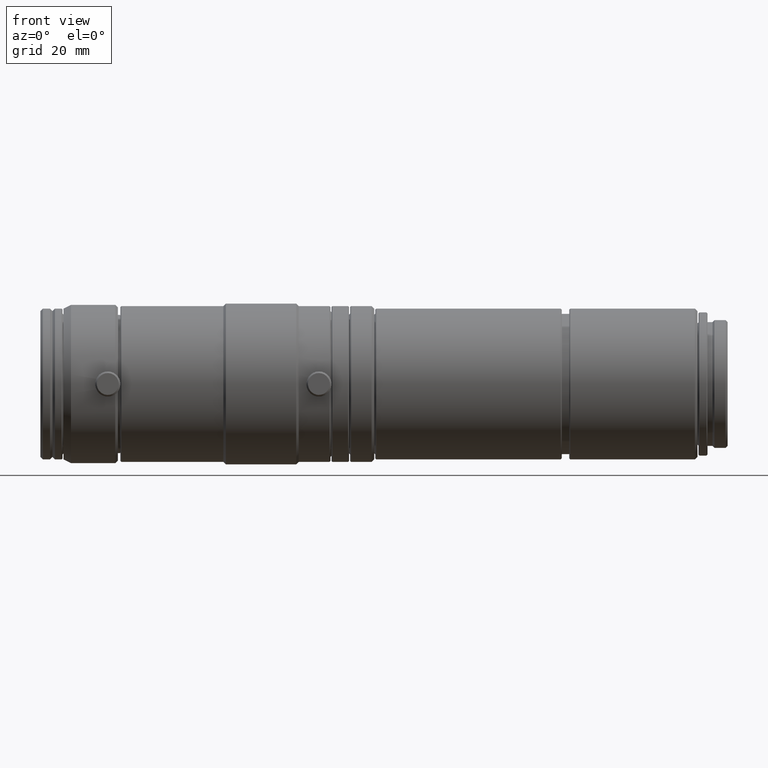
[diagram: clean part render]
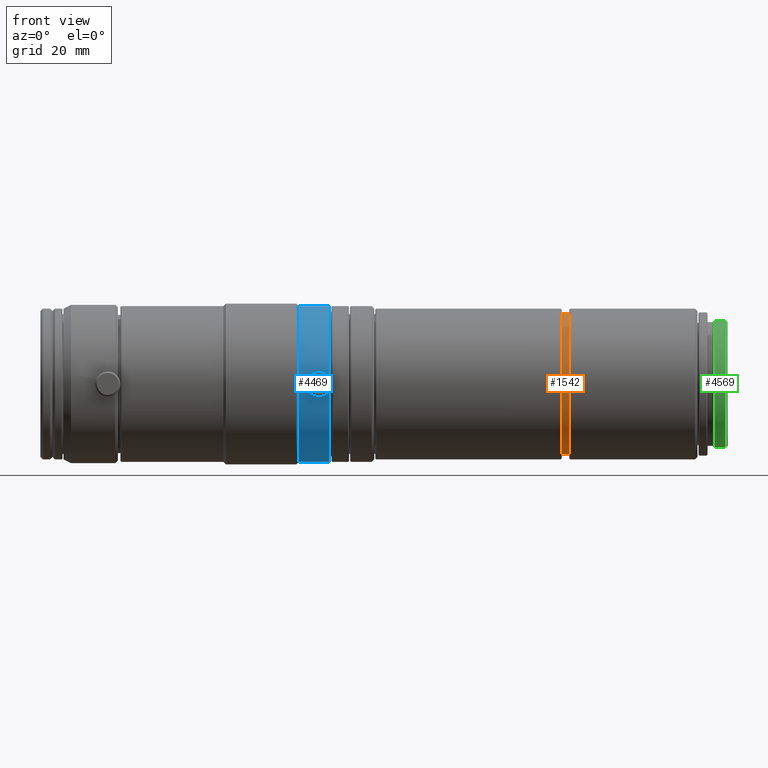
[diagram: same view with three faces highlighted in distinct colors, each labeled with its STEP entity id]
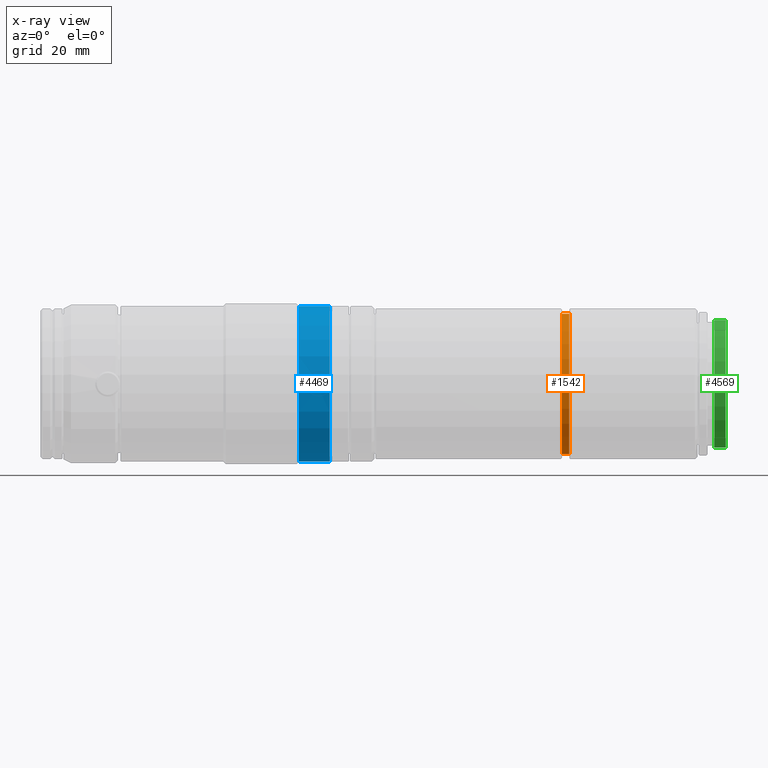
[diagram: x-ray of the same camera — body ghosted, the three highlighted faces saturated]
A machine part, front view with three faces highlighted in distinct colors.
The next image is the same camera in x-ray (body ghosted, the three faces saturated) — at least one of them is partly hidden behind the body in this view.
Their STEP definitions:

[orange] entity #1542 — the highlighted cylindrical surface (partial cylindrical patch) has radius 13.95 mm, axis along (-1, -0, -0).
#52 = CYLINDRICAL_SURFACE ( 'NONE', #1264, 13.94999999999984475 ) ;
#193 = CARTESIAN_POINT ( 'NONE',  ( -45.02599999999988256, -1.734723475976807094E-13, 13.94999999999984475 ) ) ;
#408 = EDGE_CURVE ( 'NONE', #541, #1336, #1534, .T. ) ;
#452 = AXIS2_PLACEMENT_3D ( 'NONE', #2033, #3782, #4503 ) ;
#541 = VERTEX_POINT ( 'NONE', #193 ) ;
#624 = CARTESIAN_POINT ( 'NONE',  ( -46.52599999999990388, -1.717639653128701907E-13, -13.94999999999984475 ) ) ;
#671 = EDGE_CURVE ( 'NONE', #3006, #3467, #4531, .T. ) ;
#710 = DIRECTION ( 'NONE',  ( -1.000000000000000000, -0.0000000000000000000, -0.0000000000000000000 ) ) ;
#762 = DIRECTION ( 'NONE',  ( -1.000000000000000000, -0.0000000000000000000, -0.0000000000000000000 ) ) ;
#813 = AXIS2_PLACEMENT_3D ( 'NONE', #4272, #1062, #1714 ) ;
#906 = EDGE_LOOP ( 'NONE', ( #2288, #2761, #2978, #2783 ) ) ;
#909 = VECTOR ( 'NONE', #762, 1000.000000000000000 ) ;
#1062 = DIRECTION ( 'NONE',  ( -1.000000000000000000, -0.0000000000000000000, -0.0000000000000000000 ) ) ;
#1264 = AXIS2_PLACEMENT_3D ( 'NONE', #4615, #710, #3248 ) ;
#1336 = VERTEX_POINT ( 'NONE', #2216 ) ;
#1411 = CIRCLE ( 'NONE', #813, 13.94999999999984475 ) ;
#1534 = LINE ( 'NONE', #1889, #909 ) ;
#1542 = ADVANCED_FACE ( 'NONE', ( #2484 ), #52, .T. ) ;
#1714 = DIRECTION ( 'NONE',  ( 0.0000000000000000000, 0.0000000000000000000, 1.000000000000000000 ) ) ;
#1889 = CARTESIAN_POINT ( 'NONE',  ( -80.99597258271282385, -1.734723475976807094E-13, 13.94999999999984475 ) ) ;
#2033 = CARTESIAN_POINT ( 'NONE',  ( -46.52599999999990388, -1.734723475976807094E-13, 0.0000000000000000000 ) ) ;
#2216 = CARTESIAN_POINT ( 'NONE',  ( -46.52599999999990388, -1.734723475976807094E-13, 13.94999999999984475 ) ) ;
#2246 = EDGE_CURVE ( 'NONE', #3006, #541, #1411, .T. ) ;
#2288 = ORIENTED_EDGE ( 'NONE', *, *, #671, .F. ) ;
#2463 = CIRCLE ( 'NONE', #452, 13.94999999999984475 ) ;
#2484 = FACE_OUTER_BOUND ( 'NONE', #906, .T. ) ;
#2761 = ORIENTED_EDGE ( 'NONE', *, *, #2246, .T. ) ;
#2783 = ORIENTED_EDGE ( 'NONE', *, *, #3510, .F. ) ;
#2978 = ORIENTED_EDGE ( 'NONE', *, *, #408, .T. ) ;
#3006 = VERTEX_POINT ( 'NONE', #4364 ) ;
#3248 = DIRECTION ( 'NONE',  ( 0.0000000000000000000, 0.0000000000000000000, 1.000000000000000000 ) ) ;
#3421 = DIRECTION ( 'NONE',  ( -1.000000000000000000, -0.0000000000000000000, -0.0000000000000000000 ) ) ;
#3467 = VERTEX_POINT ( 'NONE', #624 ) ;
#3510 = EDGE_CURVE ( 'NONE', #3467, #1336, #2463, .T. ) ;
#3782 = DIRECTION ( 'NONE',  ( -1.000000000000000000, -0.0000000000000000000, -0.0000000000000000000 ) ) ;
#3795 = CARTESIAN_POINT ( 'NONE',  ( -80.99597258271282385, -1.717639653128701907E-13, -13.94999999999984475 ) ) ;
#3975 = VECTOR ( 'NONE', #3421, 1000.000000000000000 ) ;
#4272 = CARTESIAN_POINT ( 'NONE',  ( -45.02599999999988256, -1.734723475976807094E-13, 0.0000000000000000000 ) ) ;
#4364 = CARTESIAN_POINT ( 'NONE',  ( -45.02599999999988256, -1.717639653128701907E-13, -13.94999999999984475 ) ) ;
#4503 = DIRECTION ( 'NONE',  ( 0.0000000000000000000, 0.0000000000000000000, 1.000000000000000000 ) ) ;
#4531 = LINE ( 'NONE', #3795, #3975 ) ;
#4615 = CARTESIAN_POINT ( 'NONE',  ( -80.99597258271282385, -1.734723475976807094E-13, 0.0000000000000000000 ) ) ;

[blue] entity #4469 — the highlighted cylindrical surface (partial cylindrical patch) has radius 15.4938 mm, axis along (-1, -0, -0).
#11 = EDGE_CURVE ( 'NONE', #2020, #3192, #3523, .T. ) ;
#21 = CARTESIAN_POINT ( 'NONE',  ( -95.25446737165636080, -15.47607258610413261, 0.7425186345703117530 ) ) ;
#87 = VERTEX_POINT ( 'NONE', #4568 ) ;
#128 = EDGE_CURVE ( 'NONE', #3103, #2020, #2779, .T. ) ;
#230 = CARTESIAN_POINT ( 'NONE',  ( -92.72599999999991383, -1.715749023950809874E-13, -15.49381588161426926 ) ) ;
#299 = ORIENTED_EDGE ( 'NONE', *, *, #3150, .F. ) ;
#300 = EDGE_CURVE ( 'NONE', #87, #826, #928, .T. ) ;
#324 = CARTESIAN_POINT ( 'NONE',  ( -94.82600000000030604, -15.47048255786998183, -0.8500000000050538240 ) ) ;
#391 = CARTESIAN_POINT ( 'NONE',  ( -94.82599999999989393, -15.47048255787025717, 0.8500000000000174083 ) ) ;
#443 = CARTESIAN_POINT ( 'NONE',  ( -95.25426659892906400, -15.47606660069958906, -0.7426425660551916330 ) ) ;
#501 = CARTESIAN_POINT ( 'NONE',  ( -92.72599999999991383, -1.734723475976807094E-13, 15.49381588161426926 ) ) ;
#574 = CIRCLE ( 'NONE', #2287, 15.49381588161426926 ) ;
#623 = DIRECTION ( 'NONE',  ( 0.0000000000000000000, 0.0000000000000000000, 1.000000000000000000 ) ) ;
#703 = CARTESIAN_POINT ( 'NONE',  ( -95.34783336027098244, -15.47907799314020316, -0.6802827682924112995 ) ) ;
#757 = CARTESIAN_POINT ( 'NONE',  ( -95.67596036666603254, -15.49381370730619523, 0.1112065953670492158 ) ) ;
#779 = CARTESIAN_POINT ( 'NONE',  ( -92.72599999999991383, -1.734723475976807094E-13, 0.0000000000000000000 ) ) ;
#826 = VERTEX_POINT ( 'NONE', #324 ) ;
#831 = DIRECTION ( 'NONE',  ( 0.0000000000000000000, 0.0000000000000000000, 1.000000000000000000 ) ) ;
#928 = B_SPLINE_CURVE_WITH_KNOTS ( 'NONE', 3,
 ( #391, #4337, #4309, #21, #1136, #1180, #2557, #2223, #757, #2199, #3648, #4362, #1159, #703, #443, #2607, #1467, #3218 ),
 .UNSPECIFIED., .F., .F.,
 ( 4, 2, 2, 2, 2, 2, 2, 2, 4 ),
 ( 0.0000000000000000000, 0.0003322483264953155326, 0.0006644966529906310652, 0.0009967449794859467062, 0.001328993305981262130, 0.001661241632476577555, 0.001993489958971893412, 0.002325738285467208837, 0.002657986611962524261 ),
 .UNSPECIFIED. ) ;
#969 = CARTESIAN_POINT ( 'NONE',  ( -94.08315502678317443, -15.48824834827563102, 0.4279260222972148808 ) ) ;
#990 = CARTESIAN_POINT ( 'NONE',  ( -94.60324589908309179, -15.47174813613593614, -0.8277301331874483692 ) ) ;
#1064 = VERTEX_POINT ( 'NONE', #1379 ) ;
#1069 = DIRECTION ( 'NONE',  ( -1.000000000000000000, -0.0000000000000000000, -0.0000000000000000000 ) ) ;
#1086 = ORIENTED_EDGE ( 'NONE', *, *, #11, .T. ) ;
#1136 = CARTESIAN_POINT ( 'NONE',  ( -95.34875396797387737, -15.47911384840322491, 0.6793561786664675806 ) ) ;
#1148 = EDGE_CURVE ( 'NONE', #1064, #3192, #574, .T. ) ;
#1158 = ORIENTED_EDGE ( 'NONE', *, *, #4171, .F. ) ;
#1159 = CARTESIAN_POINT ( 'NONE',  ( -95.50651042020669479, -15.48523941997138031, -0.5215364500371673095 ) ) ;
#1180 = CARTESIAN_POINT ( 'NONE',  ( -95.50554706322537868, -15.48520190478426706, 0.5225058060792246994 ) ) ;
#1209 = DIRECTION ( 'NONE',  ( -1.000000000000000000, -0.0000000000000000000, -0.0000000000000000000 ) ) ;
#1283 = CARTESIAN_POINT ( 'NONE',  ( -94.82599999999989393, -15.47048255787025717, 0.8500000000000174083 ) ) ;
#1324 = CARTESIAN_POINT ( 'NONE',  ( -94.30379561736198468, -15.47909520371758596, -0.6797670255203960288 ) ) ;
#1379 = CARTESIAN_POINT ( 'NONE',  ( -98.82599999999993656, -1.715749023950809874E-13, -15.49381588161426926 ) ) ;
#1467 = CARTESIAN_POINT ( 'NONE',  ( -94.93696142450068010, -15.47048255787026427, -0.8499999999999253708 ) ) ;
#1486 = ORIENTED_EDGE ( 'NONE', *, *, #1148, .F. ) ;
#1556 = CARTESIAN_POINT ( 'NONE',  ( -80.99597258271282385, -1.734723475976807094E-13, 0.0000000000000000000 ) ) ;
#1600 = EDGE_LOOP ( 'NONE', ( #1158, #1911, #1086, #1486 ) ) ;
#1612 = CARTESIAN_POINT ( 'NONE',  ( -80.99597258271282385, -1.715749023950809874E-13, -15.49381588161426926 ) ) ;
#1731 = CARTESIAN_POINT ( 'NONE',  ( -80.99597258271282385, -1.734723475976807094E-13, 15.49381588161426926 ) ) ;
#1746 = EDGE_LOOP ( 'NONE', ( #2652, #299 ) ) ;
#1771 = CARTESIAN_POINT ( 'NONE',  ( -98.82599999999993656, -1.734723475976807094E-13, 0.0000000000000000000 ) ) ;
#1911 = ORIENTED_EDGE ( 'NONE', *, *, #128, .T. ) ;
#1990 = AXIS2_PLACEMENT_3D ( 'NONE', #1556, #1209, #831 ) ;
#1999 = CARTESIAN_POINT ( 'NONE',  ( -93.99832356615496565, -15.49254855719626889, -0.2232493793685214889 ) ) ;
#2020 = VERTEX_POINT ( 'NONE', #501 ) ;
#2037 = CARTESIAN_POINT ( 'NONE',  ( -94.38129770815358199, -15.47608003582110925, 0.7576004162992882041 ) ) ;
#2055 = CARTESIAN_POINT ( 'NONE',  ( -94.14615379588785515, -15.48521511242138082, 0.5221242845740771132 ) ) ;
#2199 = CARTESIAN_POINT ( 'NONE',  ( -95.67603952507468534, -15.49381804998352585, -0.1105998985849310223 ) ) ;
#2204 = B_SPLINE_CURVE_WITH_KNOTS ( 'NONE', 3,
 ( #4542, #2771, #990, #3109, #1324, #2747, #4173, #1999, #3411, #4482, #2407, #969, #2055, #2037, #3474, #1283 ),
 .UNSPECIFIED., .F., .F.,
 ( 4, 2, 2, 2, 2, 2, 2, 4 ),
 ( 0.002657986611962524261, 0.002990159070146856252, 0.003322331528331188243, 0.003654503986515520234, 0.003986676444699852224, 0.004318848902884184215, 0.004651021361068517074, 0.005315366277437209679 ),
 .UNSPECIFIED. ) ;
#2223 = CARTESIAN_POINT ( 'NONE',  ( -95.65364179140868828, -15.49254754847084214, 0.2230902797096209478 ) ) ;
#2287 = AXIS2_PLACEMENT_3D ( 'NONE', #1771, #1069, #623 ) ;
#2324 = VECTOR ( 'NONE', #4199, 1000.000000000000000 ) ;
#2407 = CARTESIAN_POINT ( 'NONE',  ( -93.99790242326537282, -15.49257124689839848, 0.2217966144892720981 ) ) ;
#2557 = CARTESIAN_POINT ( 'NONE',  ( -95.56886954455065109, -15.48825018415458565, 0.4276739968319707708 ) ) ;
#2583 = FACE_OUTER_BOUND ( 'NONE', #1600, .T. ) ;
#2607 = CARTESIAN_POINT ( 'NONE',  ( -95.04825580496805060, -15.47173625655417517, -0.8279689715402090977 ) ) ;
#2652 = ORIENTED_EDGE ( 'NONE', *, *, #300, .F. ) ;
#2747 = CARTESIAN_POINT ( 'NONE',  ( -94.14696553104543852, -15.48517932471350811, -0.5231565886069362570 ) ) ;
#2771 = CARTESIAN_POINT ( 'NONE',  ( -94.71506391334331454, -15.47048255787025539, -0.8500000000001100009 ) ) ;
#2779 = CIRCLE ( 'NONE', #3978, 15.49381588161426926 ) ;
#3050 = DIRECTION ( 'NONE',  ( -1.000000000000000000, -0.0000000000000000000, -0.0000000000000000000 ) ) ;
#3103 = VERTEX_POINT ( 'NONE', #230 ) ;
#3109 = CARTESIAN_POINT ( 'NONE',  ( -94.39865662977817351, -15.47604579195290242, -0.7430573374843361112 ) ) ;
#3150 = EDGE_CURVE ( 'NONE', #826, #87, #2204, .T. ) ;
#3170 = CARTESIAN_POINT ( 'NONE',  ( -98.82599999999993656, -1.734723475976807094E-13, 15.49381588161426926 ) ) ;
#3192 = VERTEX_POINT ( 'NONE', #3170 ) ;
#3218 = CARTESIAN_POINT ( 'NONE',  ( -94.82600000000030604, -15.47048255786998183, -0.8500000000050538240 ) ) ;
#3393 = LINE ( 'NONE', #1612, #3632 ) ;
#3411 = CARTESIAN_POINT ( 'NONE',  ( -93.97609235222441271, -15.49381081511790725, -0.1128458902569431932 ) ) ;
#3474 = CARTESIAN_POINT ( 'NONE',  ( -94.60136001657306792, -15.47048255787025361, 0.8500000000000174083 ) ) ;
#3523 = LINE ( 'NONE', #1731, #2324 ) ;
#3594 = DIRECTION ( 'NONE',  ( -1.000000000000000000, -0.0000000000000000000, -0.0000000000000000000 ) ) ;
#3632 = VECTOR ( 'NONE', #3050, 1000.000000000000000 ) ;
#3648 = CARTESIAN_POINT ( 'NONE',  ( -95.65401543987285038, -15.49256697301086305, -0.2220308615893081816 ) ) ;
#3978 = AXIS2_PLACEMENT_3D ( 'NONE', #779, #3594, #4608 ) ;
#4020 = FACE_BOUND ( 'NONE', #1746, .T. ) ;
#4171 = EDGE_CURVE ( 'NONE', #3103, #1064, #3393, .T. ) ;
#4173 = CARTESIAN_POINT ( 'NONE',  ( -94.08371059615409138, -15.48822152724461532, -0.4288298094453893983 ) ) ;
#4199 = DIRECTION ( 'NONE',  ( -1.000000000000000000, -0.0000000000000000000, -0.0000000000000000000 ) ) ;
#4309 = CARTESIAN_POINT ( 'NONE',  ( -95.04858525658980284, -15.47174142099850869, 0.8278731876363516484 ) ) ;
#4337 = CARTESIAN_POINT ( 'NONE',  ( -94.93834564564048151, -15.47048255787025717, 0.8500000000000172973 ) ) ;
#4362 = CARTESIAN_POINT ( 'NONE',  ( -95.56884758402428304, -15.48824858974215246, -0.4278840252629851904 ) ) ;
#4413 = CYLINDRICAL_SURFACE ( 'NONE', #1990, 15.49381588161426926 ) ;
#4469 = ADVANCED_FACE ( 'NONE', ( #2583, #4020 ), #4413, .T. ) ;
#4482 = CARTESIAN_POINT ( 'NONE',  ( -93.97590822061305005, -15.49382091668476669, 0.1114503087212706245 ) ) ;
#4542 = CARTESIAN_POINT ( 'NONE',  ( -94.82600000000030604, -15.47048255786998183, -0.8500000000050538240 ) ) ;
#4568 = CARTESIAN_POINT ( 'NONE',  ( -94.82599999999989393, -15.47048255787025717, 0.8500000000000174083 ) ) ;
#4608 = DIRECTION ( 'NONE',  ( 0.0000000000000000000, 0.0000000000000000000, 1.000000000000000000 ) ) ;

[green] entity #4569 — the highlighted cylindrical surface (partial cylindrical patch) has radius 12.7 mm, axis along (-1, -0, -0).
#20 = VERTEX_POINT ( 'NONE', #2100 ) ;
#76 = DIRECTION ( 'NONE',  ( -1.000000000000000000, -0.0000000000000000000, -0.0000000000000000000 ) ) ;
#99 = ORIENTED_EDGE ( 'NONE', *, *, #349, .T. ) ;
#222 = VECTOR ( 'NONE', #3617, 1000.000000000000000 ) ;
#349 = EDGE_CURVE ( 'NONE', #20, #4029, #2459, .T. ) ;
#354 = EDGE_CURVE ( 'NONE', #4029, #1328, #2245, .T. ) ;
#420 = CYLINDRICAL_SURFACE ( 'NONE', #711, 12.69999999999984297 ) ;
#531 = DIRECTION ( 'NONE',  ( 0.0000000000000000000, 0.0000000000000000000, 1.000000000000000000 ) ) ;
#602 = CARTESIAN_POINT ( 'NONE',  ( -16.12899999999990897, -1.734723475976807094E-13, 0.0000000000000000000 ) ) ;
#711 = AXIS2_PLACEMENT_3D ( 'NONE', #3295, #76, #2342 ) ;
#713 = EDGE_CURVE ( 'NONE', #3353, #1328, #4632, .T. ) ;
#745 = VECTOR ( 'NONE', #2084, 1000.000000000000000 ) ;
#1207 = CARTESIAN_POINT ( 'NONE',  ( -13.92299999999989346, -1.734723475976807094E-13, 0.0000000000000000000 ) ) ;
#1328 = VERTEX_POINT ( 'NONE', #3331 ) ;
#1554 = DIRECTION ( 'NONE',  ( -1.000000000000000000, -0.0000000000000000000, -0.0000000000000000000 ) ) ;
#1596 = ORIENTED_EDGE ( 'NONE', *, *, #713, .F. ) ;
#1650 = EDGE_LOOP ( 'NONE', ( #3388, #99, #2043, #1596 ) ) ;
#1716 = AXIS2_PLACEMENT_3D ( 'NONE', #602, #2046, #531 ) ;
#1908 = DIRECTION ( 'NONE',  ( 0.0000000000000000000, 0.0000000000000000000, 1.000000000000000000 ) ) ;
#2043 = ORIENTED_EDGE ( 'NONE', *, *, #354, .T. ) ;
#2046 = DIRECTION ( 'NONE',  ( -1.000000000000000000, -0.0000000000000000000, -0.0000000000000000000 ) ) ;
#2084 = DIRECTION ( 'NONE',  ( -1.000000000000000000, -0.0000000000000000000, -0.0000000000000000000 ) ) ;
#2100 = CARTESIAN_POINT ( 'NONE',  ( -13.92299999999989346, -1.719170461627635655E-13, -12.69999999999984297 ) ) ;
#2245 = LINE ( 'NONE', #3692, #745 ) ;
#2342 = DIRECTION ( 'NONE',  ( 0.0000000000000000000, 0.0000000000000000000, 1.000000000000000000 ) ) ;
#2459 = CIRCLE ( 'NONE', #2768, 12.69999999999984297 ) ;
#2768 = AXIS2_PLACEMENT_3D ( 'NONE', #1207, #1554, #1908 ) ;
#3214 = LINE ( 'NONE', #3936, #222 ) ;
#3286 = CARTESIAN_POINT ( 'NONE',  ( -16.12899999999990897, -1.719170461627635907E-13, -12.69999999999984297 ) ) ;
#3295 = CARTESIAN_POINT ( 'NONE',  ( -80.99597258271282385, -1.734723475976807094E-13, 0.0000000000000000000 ) ) ;
#3319 = EDGE_CURVE ( 'NONE', #20, #3353, #3214, .T. ) ;
#3331 = CARTESIAN_POINT ( 'NONE',  ( -16.12899999999990897, -1.734723475976807094E-13, 12.69999999999984297 ) ) ;
#3353 = VERTEX_POINT ( 'NONE', #3286 ) ;
#3388 = ORIENTED_EDGE ( 'NONE', *, *, #3319, .F. ) ;
#3617 = DIRECTION ( 'NONE',  ( -1.000000000000000000, -0.0000000000000000000, -0.0000000000000000000 ) ) ;
#3649 = FACE_OUTER_BOUND ( 'NONE', #1650, .T. ) ;
#3692 = CARTESIAN_POINT ( 'NONE',  ( -80.99597258271282385, -1.734723475976807094E-13, 12.69999999999984297 ) ) ;
#3929 = CARTESIAN_POINT ( 'NONE',  ( -13.92299999999989346, -1.734723475976807094E-13, 12.69999999999984297 ) ) ;
#3936 = CARTESIAN_POINT ( 'NONE',  ( -80.99597258271282385, -1.719170461627635907E-13, -12.69999999999984297 ) ) ;
#4029 = VERTEX_POINT ( 'NONE', #3929 ) ;
#4569 = ADVANCED_FACE ( 'NONE', ( #3649 ), #420, .T. ) ;
#4632 = CIRCLE ( 'NONE', #1716, 12.69999999999984297 ) ;